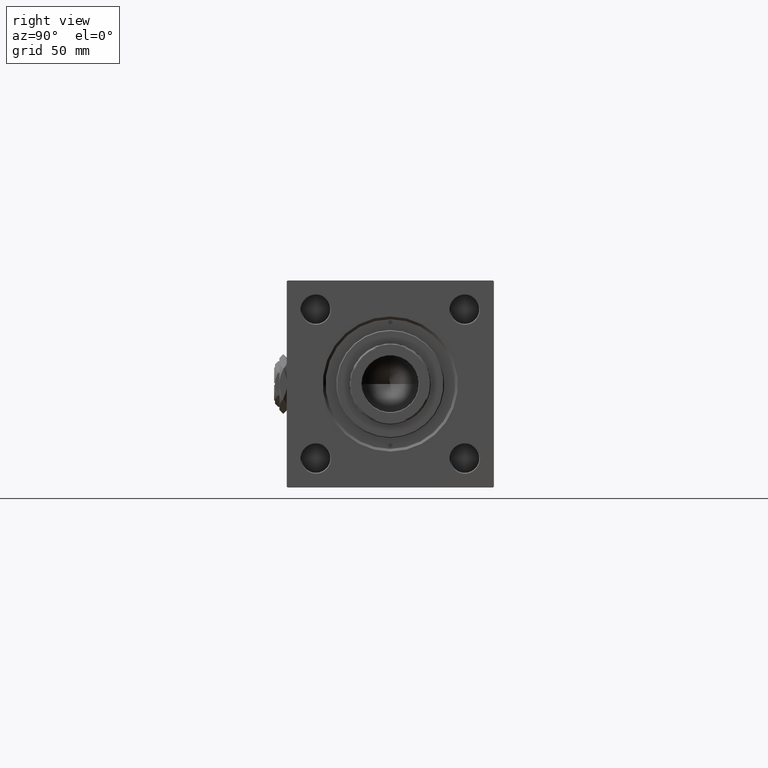
[diagram: clean part render]
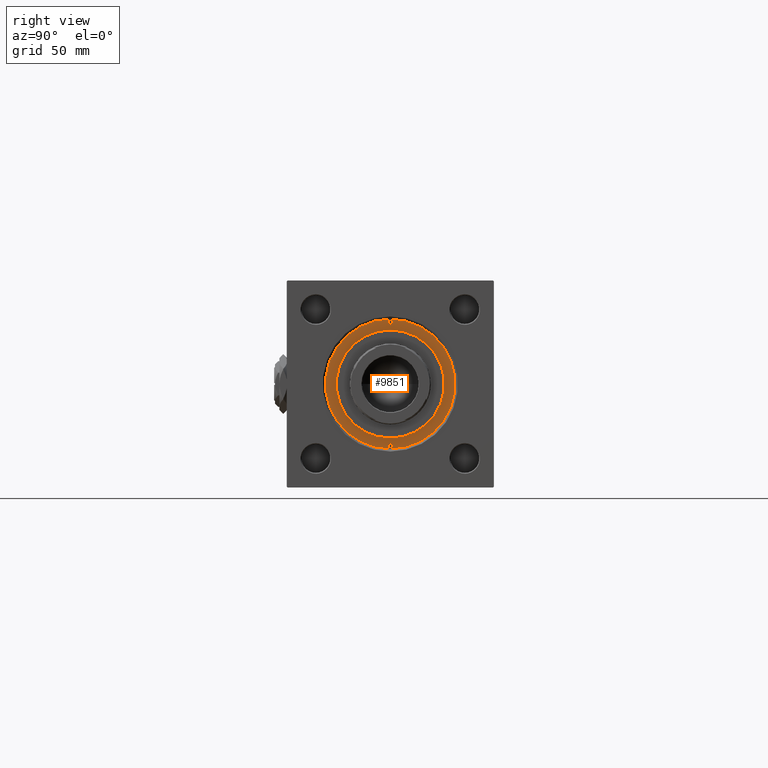
[diagram: same view with one face highlighted and labeled with its STEP entity id]
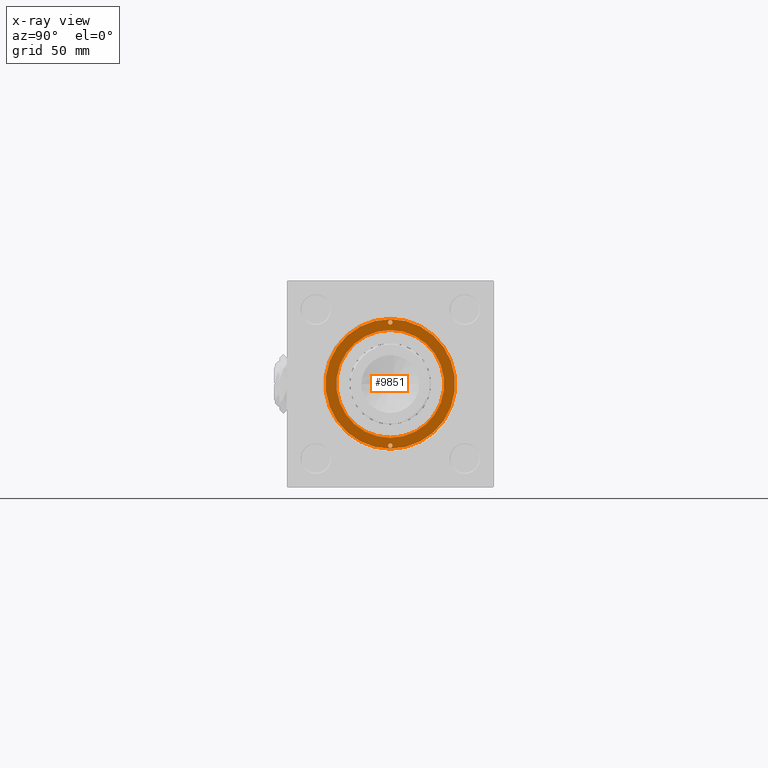
[diagram: x-ray of the same camera — body ghosted, the highlighted face saturated]
A machine part, right view. The second image highlights one B-rep face of the part: STEP entity #9851.
The next image is the same camera in x-ray: the body ghosted, the highlighted face saturated — about 0% of this face is hidden behind the body in this view.
In plain terms, the highlighted planar face has unit normal (1, 0, 0).
Its self-contained STEP definition (entity closure, byte-faithful):
#333 = VERTEX_POINT ( 'NONE', #24413 ) ;
#1424 = DIRECTION ( 'NONE',  ( 0.000000000000000000, 0.000000000000000000, 1.000000000000000000 ) ) ;
#1608 = VERTEX_POINT ( 'NONE', #32223 ) ;
#1618 = DIRECTION ( 'NONE',  ( 0.000000000000000000, 0.000000000000000000, 1.000000000000000000 ) ) ;
#1852 = AXIS2_PLACEMENT_3D ( 'NONE', #25990, #19027, #34778 ) ;
#2169 = ORIENTED_EDGE ( 'NONE', *, *, #44537, .T. ) ;
#2294 = VERTEX_POINT ( 'NONE', #34989 ) ;
#2301 = ORIENTED_EDGE ( 'NONE', *, *, #22163, .F. ) ;
#4401 = DIRECTION ( 'NONE',  ( 1.000000000000000000, 0.000000000000000000, 0.000000000000000000 ) ) ;
#4729 = EDGE_CURVE ( 'NONE', #333, #5339, #28051, .T. ) ;
#5339 = VERTEX_POINT ( 'NONE', #20689 ) ;
#5702 = DIRECTION ( 'NONE',  ( 1.000000000000000000, 0.000000000000000000, 0.000000000000000000 ) ) ;
#7075 = EDGE_CURVE ( 'NONE', #26264, #31283, #40170, .T. ) ;
#7755 = CARTESIAN_POINT ( 'NONE',  ( 36.00000000000000000, 4.408728476930470856E-15, 28.69999999999999929 ) ) ;
#8150 = CARTESIAN_POINT ( 'NONE',  ( 34.25000000000000000, 0.000000000000000000, 28.69999999999999929 ) ) ;
#9217 = EDGE_CURVE ( 'NONE', #41575, #1608, #17227, .T. ) ;
#9383 = DIRECTION ( 'NONE',  ( 1.000000000000000000, 0.000000000000000000, -0.000000000000000000 ) ) ;
#9851 = ADVANCED_FACE ( 'NONE', ( #33936, #21665, #38199, #33669 ), #13373, .T. ) ;
#10207 = DIRECTION ( 'NONE',  ( 1.000000000000000000, 0.000000000000000000, 0.000000000000000000 ) ) ;
#10740 = AXIS2_PLACEMENT_3D ( 'NONE', #12677, #16949, #33491 ) ;
#10957 = EDGE_LOOP ( 'NONE', ( #2301, #40734 ) ) ;
#12481 = CIRCLE ( 'NONE', #50056, 1.250000000000001110 ) ;
#12677 = CARTESIAN_POINT ( 'NONE',  ( 0.000000000000000000, 0.000000000000000000, 28.69999999999999929 ) ) ;
#13373 = PLANE ( 'NONE',  #27482 ) ;
#15561 = ORIENTED_EDGE ( 'NONE', *, *, #7075, .F. ) ;
#16519 = CIRCLE ( 'NONE', #35287, 36.00000000000000000 ) ;
#16840 = CARTESIAN_POINT ( 'NONE',  ( -35.50000000000000711, 1.530808498934184175E-16, 28.69999999999999929 ) ) ;
#16949 = DIRECTION ( 'NONE',  ( 0.000000000000000000, 0.000000000000000000, 1.000000000000000000 ) ) ;
#17227 = CIRCLE ( 'NONE', #1852, 30.00000000000000000 ) ;
#17335 = DIRECTION ( 'NONE',  ( 1.000000000000000000, 0.000000000000000000, 0.000000000000000000 ) ) ;
#18266 = AXIS2_PLACEMENT_3D ( 'NONE', #48561, #40524, #41049 ) ;
#19027 = DIRECTION ( 'NONE',  ( 0.000000000000000000, 0.000000000000000000, 1.000000000000000000 ) ) ;
#19763 = CARTESIAN_POINT ( 'NONE',  ( 34.25000000000000000, 0.000000000000000000, 28.69999999999999929 ) ) ;
#20689 = CARTESIAN_POINT ( 'NONE',  ( 35.50000000000000711, 0.000000000000000000, 28.69999999999999929 ) ) ;
#21202 = CARTESIAN_POINT ( 'NONE',  ( -34.25000000000000000, 0.000000000000000000, 28.69999999999999929 ) ) ;
#21665 = FACE_BOUND ( 'NONE', #10957, .T. ) ;
#22163 = EDGE_CURVE ( 'NONE', #5339, #333, #32038, .T. ) ;
#22299 = EDGE_CURVE ( 'NONE', #1608, #41575, #43124, .T. ) ;
#23983 = AXIS2_PLACEMENT_3D ( 'NONE', #21202, #1424, #5702 ) ;
#24255 = EDGE_LOOP ( 'NONE', ( #32284, #15561 ) ) ;
#24413 = CARTESIAN_POINT ( 'NONE',  ( 33.00000000000000000, 1.530808498934184175E-16, 28.69999999999999929 ) ) ;
#25166 = CARTESIAN_POINT ( 'NONE',  ( -33.00000000000000000, 0.000000000000000000, 28.69999999999999929 ) ) ;
#25990 = CARTESIAN_POINT ( 'NONE',  ( 0.000000000000000000, 0.000000000000000000, 28.69999999999999929 ) ) ;
#26264 = VERTEX_POINT ( 'NONE', #16840 ) ;
#26982 = EDGE_CURVE ( 'NONE', #31283, #26264, #12481, .T. ) ;
#27482 = AXIS2_PLACEMENT_3D ( 'NONE', #45974, #1618, #9383 ) ;
#28051 = CIRCLE ( 'NONE', #37414, 1.250000000000001110 ) ;
#29964 = DIRECTION ( 'NONE',  ( 0.000000000000000000, 0.000000000000000000, 1.000000000000000000 ) ) ;
#30410 = ORIENTED_EDGE ( 'NONE', *, *, #22299, .F. ) ;
#30649 = VERTEX_POINT ( 'NONE', #7755 ) ;
#31283 = VERTEX_POINT ( 'NONE', #25166 ) ;
#32038 = CIRCLE ( 'NONE', #43973, 1.250000000000001110 ) ;
#32223 = CARTESIAN_POINT ( 'NONE',  ( 30.00000000000000000, 3.673940397442059178E-15, 28.69999999999999929 ) ) ;
#32284 = ORIENTED_EDGE ( 'NONE', *, *, #26982, .F. ) ;
#33491 = DIRECTION ( 'NONE',  ( 1.000000000000000000, 0.000000000000000000, 0.000000000000000000 ) ) ;
#33669 = FACE_OUTER_BOUND ( 'NONE', #43552, .T. ) ;
#33936 = FACE_BOUND ( 'NONE', #24255, .T. ) ;
#34230 = CARTESIAN_POINT ( 'NONE',  ( -34.25000000000000000, 0.000000000000000000, 28.69999999999999929 ) ) ;
#34778 = DIRECTION ( 'NONE',  ( 1.000000000000000000, 0.000000000000000000, 0.000000000000000000 ) ) ;
#34989 = CARTESIAN_POINT ( 'NONE',  ( -36.00000000000000000, 0.000000000000000000, 28.69999999999999929 ) ) ;
#35287 = AXIS2_PLACEMENT_3D ( 'NONE', #49934, #46435, #17335 ) ;
#36329 = ORIENTED_EDGE ( 'NONE', *, *, #9217, .F. ) ;
#37414 = AXIS2_PLACEMENT_3D ( 'NONE', #19763, #40312, #52883 ) ;
#38199 = FACE_BOUND ( 'NONE', #42103, .T. ) ;
#40170 = CIRCLE ( 'NONE', #23983, 1.250000000000001110 ) ;
#40312 = DIRECTION ( 'NONE',  ( 0.000000000000000000, 0.000000000000000000, 1.000000000000000000 ) ) ;
#40524 = DIRECTION ( 'NONE',  ( 0.000000000000000000, 0.000000000000000000, 1.000000000000000000 ) ) ;
#40734 = ORIENTED_EDGE ( 'NONE', *, *, #4729, .F. ) ;
#41049 = DIRECTION ( 'NONE',  ( 1.000000000000000000, 0.000000000000000000, 0.000000000000000000 ) ) ;
#41575 = VERTEX_POINT ( 'NONE', #47869 ) ;
#42103 = EDGE_LOOP ( 'NONE', ( #36329, #30410 ) ) ;
#43124 = CIRCLE ( 'NONE', #10740, 30.00000000000000000 ) ;
#43425 = EDGE_CURVE ( 'NONE', #30649, #2294, #16519, .T. ) ;
#43552 = EDGE_LOOP ( 'NONE', ( #2169, #51194 ) ) ;
#43973 = AXIS2_PLACEMENT_3D ( 'NONE', #8150, #44721, #4401 ) ;
#44537 = EDGE_CURVE ( 'NONE', #2294, #30649, #49860, .T. ) ;
#44721 = DIRECTION ( 'NONE',  ( 0.000000000000000000, 0.000000000000000000, 1.000000000000000000 ) ) ;
#45974 = CARTESIAN_POINT ( 'NONE',  ( 0.000000000000000000, 0.000000000000000000, 28.69999999999999929 ) ) ;
#46435 = DIRECTION ( 'NONE',  ( 0.000000000000000000, 0.000000000000000000, 1.000000000000000000 ) ) ;
#47869 = CARTESIAN_POINT ( 'NONE',  ( -30.00000000000000000, 0.000000000000000000, 28.69999999999999929 ) ) ;
#48561 = CARTESIAN_POINT ( 'NONE',  ( 0.000000000000000000, 0.000000000000000000, 28.69999999999999929 ) ) ;
#49860 = CIRCLE ( 'NONE', #18266, 36.00000000000000000 ) ;
#49934 = CARTESIAN_POINT ( 'NONE',  ( 0.000000000000000000, 0.000000000000000000, 28.69999999999999929 ) ) ;
#50056 = AXIS2_PLACEMENT_3D ( 'NONE', #34230, #29964, #10207 ) ;
#51194 = ORIENTED_EDGE ( 'NONE', *, *, #43425, .T. ) ;
#52883 = DIRECTION ( 'NONE',  ( 1.000000000000000000, 0.000000000000000000, 0.000000000000000000 ) ) ;